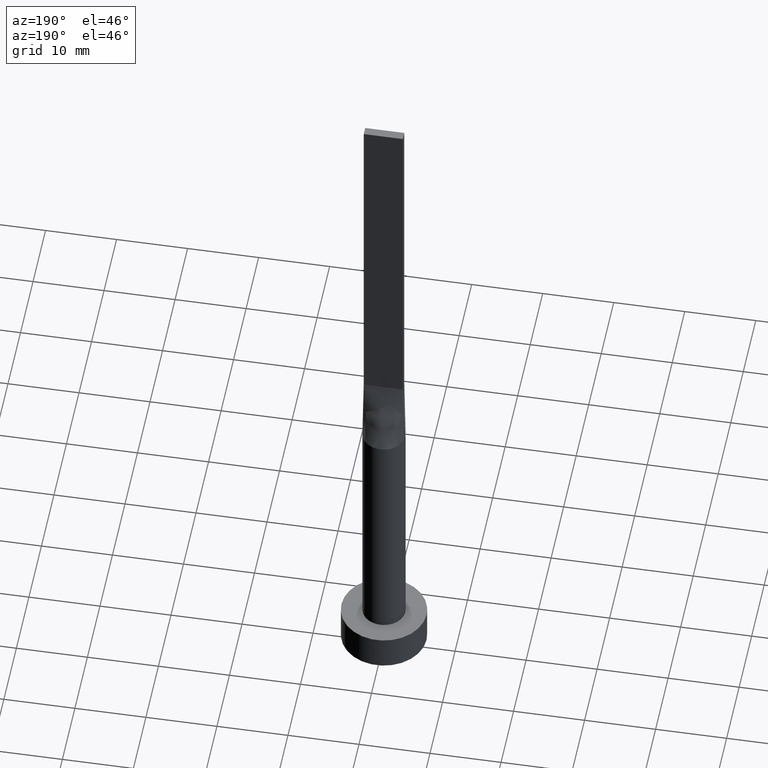
[diagram: clean part render]
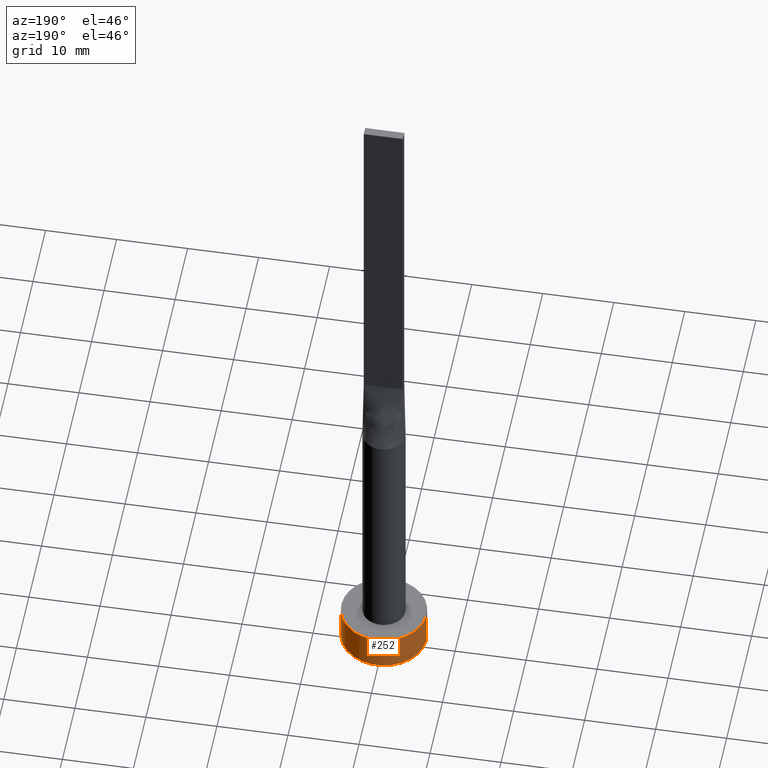
[diagram: same view with one face highlighted and labeled with its STEP entity id]
A machine part, auxiliary view. The second image highlights one B-rep face of the part: STEP entity #252.
In plain terms, the highlighted cylindrical surface (partial cylindrical patch) has radius 6 mm, axis along (-0, -0, -1).
Its self-contained STEP definition (entity closure, byte-faithful):
#7 = DIRECTION ( 'NONE',  ( 1.000000000000000000, 0.000000000000000000, 0.000000000000000000 ) ) ;
#19 = AXIS2_PLACEMENT_3D ( 'NONE', #491, #273, #56 ) ;
#21 = CARTESIAN_POINT ( 'NONE',  ( 6.000000000000000888, 7.347880794884120722E-16, 5.000000000000000000 ) ) ;
#27 = CARTESIAN_POINT ( 'NONE',  ( 6.000000000000000888, 7.347880794884120722E-16, 5.000000000000000000 ) ) ;
#29 = EDGE_CURVE ( 'NONE', #364, #304, #486, .T. ) ;
#56 = DIRECTION ( 'NONE',  ( -1.000000000000000000, 0.000000000000000000, 0.000000000000000000 ) ) ;
#91 = EDGE_LOOP ( 'NONE', ( #492, #357, #536, #407 ) ) ;
#129 = CARTESIAN_POINT ( 'NONE',  ( -6.000000000000000888, 0.000000000000000000, 5.000000000000000000 ) ) ;
#166 = CARTESIAN_POINT ( 'NONE',  ( 0.000000000000000000, 0.000000000000000000, 5.000000000000000000 ) ) ;
#168 = VERTEX_POINT ( 'NONE', #27 ) ;
#184 = CYLINDRICAL_SURFACE ( 'NONE', #19, 6.000000000000000888 ) ;
#188 = CARTESIAN_POINT ( 'NONE',  ( -6.000000000000000888, 0.000000000000000000, 0.000000000000000000 ) ) ;
#190 = EDGE_CURVE ( 'NONE', #334, #304, #322, .T. ) ;
#192 = AXIS2_PLACEMENT_3D ( 'NONE', #166, #425, #201 ) ;
#201 = DIRECTION ( 'NONE',  ( 1.000000000000000000, 0.000000000000000000, 0.000000000000000000 ) ) ;
#252 = ADVANCED_FACE ( 'NONE', ( #577 ), #184, .T. ) ;
#273 = DIRECTION ( 'NONE',  ( -0.000000000000000000, -0.000000000000000000, -1.000000000000000000 ) ) ;
#277 = VECTOR ( 'NONE', #533, 1000.000000000000000 ) ;
#283 = DIRECTION ( 'NONE',  ( 0.000000000000000000, 0.000000000000000000, 1.000000000000000000 ) ) ;
#304 = VERTEX_POINT ( 'NONE', #188 ) ;
#322 = LINE ( 'NONE', #129, #277 ) ;
#332 = CARTESIAN_POINT ( 'NONE',  ( -6.000000000000000888, 0.000000000000000000, 5.000000000000000000 ) ) ;
#334 = VERTEX_POINT ( 'NONE', #332 ) ;
#357 = ORIENTED_EDGE ( 'NONE', *, *, #471, .T. ) ;
#364 = VERTEX_POINT ( 'NONE', #370 ) ;
#370 = CARTESIAN_POINT ( 'NONE',  ( 6.000000000000000888, 7.347880794884120722E-16, 0.000000000000000000 ) ) ;
#377 = VECTOR ( 'NONE', #558, 1000.000000000000000 ) ;
#386 = LINE ( 'NONE', #21, #377 ) ;
#407 = ORIENTED_EDGE ( 'NONE', *, *, #190, .F. ) ;
#422 = AXIS2_PLACEMENT_3D ( 'NONE', #505, #283, #7 ) ;
#425 = DIRECTION ( 'NONE',  ( 0.000000000000000000, 0.000000000000000000, 1.000000000000000000 ) ) ;
#471 = EDGE_CURVE ( 'NONE', #168, #364, #386, .T. ) ;
#477 = CIRCLE ( 'NONE', #192, 6.000000000000000888 ) ;
#486 = CIRCLE ( 'NONE', #422, 6.000000000000000888 ) ;
#491 = CARTESIAN_POINT ( 'NONE',  ( 0.000000000000000000, 0.000000000000000000, 5.000000000000000000 ) ) ;
#492 = ORIENTED_EDGE ( 'NONE', *, *, #502, .F. ) ;
#502 = EDGE_CURVE ( 'NONE', #168, #334, #477, .T. ) ;
#505 = CARTESIAN_POINT ( 'NONE',  ( 0.000000000000000000, 0.000000000000000000, 0.000000000000000000 ) ) ;
#533 = DIRECTION ( 'NONE',  ( -0.000000000000000000, -0.000000000000000000, -1.000000000000000000 ) ) ;
#536 = ORIENTED_EDGE ( 'NONE', *, *, #29, .T. ) ;
#558 = DIRECTION ( 'NONE',  ( -0.000000000000000000, -0.000000000000000000, -1.000000000000000000 ) ) ;
#577 = FACE_OUTER_BOUND ( 'NONE', #91, .T. ) ;